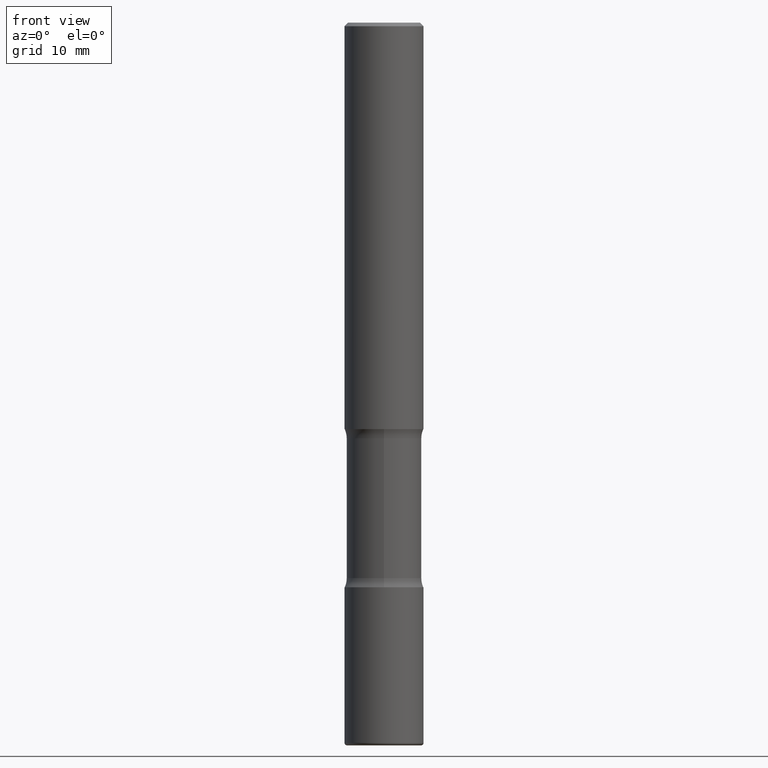
[diagram: clean part render]
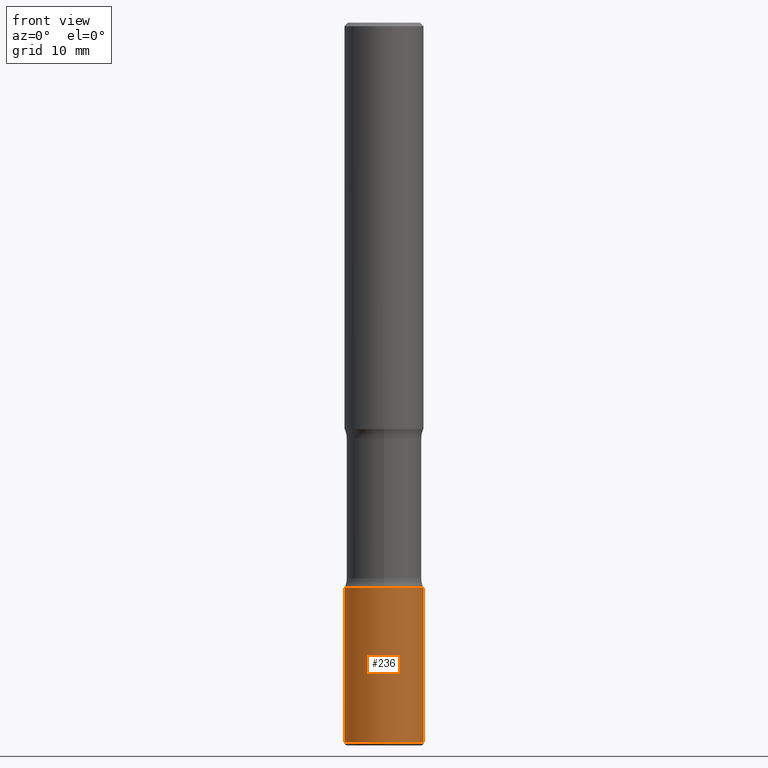
[diagram: same view with one face highlighted and labeled with its STEP entity id]
A machine part, front view. The second image highlights one B-rep face of the part: STEP entity #236.
In plain terms, the highlighted cylindrical surface (partial cylindrical patch) has radius 5.5563 mm, axis along (-0, 0, 1).
Its self-contained STEP definition (entity closure, byte-faithful):
#2 = CARTESIAN_POINT ( 'NONE',  ( -0.2187500000000003331, -1.235924090081471176E-14, -3.984999999999998987 ) ) ;
#25 = AXIS2_PLACEMENT_3D ( 'NONE', #518, #389, #432 ) ;
#26 = CARTESIAN_POINT ( 'NONE',  ( 7.642090019328550744E-29, -1.091087918388482645E-14, -3.124999999999999112 ) ) ;
#51 = DIRECTION ( 'NONE',  ( -2.445468806185136877E-29, 3.491481338843145188E-15, 1.000000000000000000 ) ) ;
#56 = FACE_OUTER_BOUND ( 'NONE', #309, .T. ) ;
#67 = LINE ( 'NONE', #241, #384 ) ;
#85 = CARTESIAN_POINT ( 'NONE',  ( 9.745193192647766827E-29, -1.391355313528993249E-14, -3.984999999999998987 ) ) ;
#95 = DIRECTION ( 'NONE',  ( 1.000000000000000000, -6.982962677686265922E-15, 0.000000000000000000 ) ) ;
#119 = EDGE_CURVE ( 'NONE', #270, #458, #260, .T. ) ;
#163 = VERTEX_POINT ( 'NONE', #491 ) ;
#184 = CIRCLE ( 'NONE', #514, 0.2187500000000001943 ) ;
#200 = EDGE_CURVE ( 'NONE', #408, #163, #184, .T. ) ;
#204 = DIRECTION ( 'NONE',  ( -2.445468806185136597E-29, 3.491481338843145583E-15, 1.000000000000000000 ) ) ;
#208 = DIRECTION ( 'NONE',  ( 1.000000000000000000, -6.982962677686269077E-15, 0.000000000000000000 ) ) ;
#236 = ADVANCED_FACE ( 'NONE', ( #56 ), #440, .T. ) ;
#241 = CARTESIAN_POINT ( 'NONE',  ( 0.2187500000000001665, -1.527523085743872026E-15, 1.066663669705361725E-29 ) ) ;
#250 = VECTOR ( 'NONE', #51, 39.37007874015748143 ) ;
#251 = EDGE_CURVE ( 'NONE', #270, #408, #474, .T. ) ;
#260 = CIRCLE ( 'NONE', #539, 0.2187500000000000833 ) ;
#270 = VERTEX_POINT ( 'NONE', #2 ) ;
#304 = CARTESIAN_POINT ( 'NONE',  ( 0.2187500000000003331, -1.544107622103380570E-14, -3.984999999999998987 ) ) ;
#309 = EDGE_LOOP ( 'NONE', ( #452, #415, #372, #490 ) ) ;
#325 = DIRECTION ( 'NONE',  ( -2.445468806185136877E-29, 3.491481338843145188E-15, 1.000000000000000000 ) ) ;
#372 = ORIENTED_EDGE ( 'NONE', *, *, #383, .T. ) ;
#383 = EDGE_CURVE ( 'NONE', #458, #163, #67, .T. ) ;
#384 = VECTOR ( 'NONE', #325, 39.37007874015748143 ) ;
#389 = DIRECTION ( 'NONE',  ( -2.445468806185136597E-29, 3.491481338843145583E-15, 1.000000000000000000 ) ) ;
#408 = VERTEX_POINT ( 'NONE', #488 ) ;
#415 = ORIENTED_EDGE ( 'NONE', *, *, #119, .T. ) ;
#432 = DIRECTION ( 'NONE',  ( 1.000000000000000000, -6.982962677686266711E-15, 4.876176775795935793E-29 ) ) ;
#440 = CYLINDRICAL_SURFACE ( 'NONE', #25, 0.2187500000000001665 ) ;
#443 = CARTESIAN_POINT ( 'NONE',  ( -0.2187500000000001665, 1.554312234475220340E-15, -1.076017050993261463E-29 ) ) ;
#452 = ORIENTED_EDGE ( 'NONE', *, *, #251, .F. ) ;
#458 = VERTEX_POINT ( 'NONE', #304 ) ;
#474 = LINE ( 'NONE', #443, #250 ) ;
#488 = CARTESIAN_POINT ( 'NONE',  ( -0.2187500000000001943, -1.085790392511215873E-14, -3.124999999999999112 ) ) ;
#490 = ORIENTED_EDGE ( 'NONE', *, *, #200, .F. ) ;
#491 = CARTESIAN_POINT ( 'NONE',  ( 0.2187500000000001943, -1.243840226962869808E-14, -3.124999999999999112 ) ) ;
#514 = AXIS2_PLACEMENT_3D ( 'NONE', #26, #204, #95 ) ;
#518 = CARTESIAN_POINT ( 'NONE',  ( 0.000000000000000000, 0.000000000000000000, 0.000000000000000000 ) ) ;
#539 = AXIS2_PLACEMENT_3D ( 'NONE', #85, #550, #208 ) ;
#550 = DIRECTION ( 'NONE',  ( -2.445468806185136597E-29, 3.491481338843145583E-15, 1.000000000000000000 ) ) ;